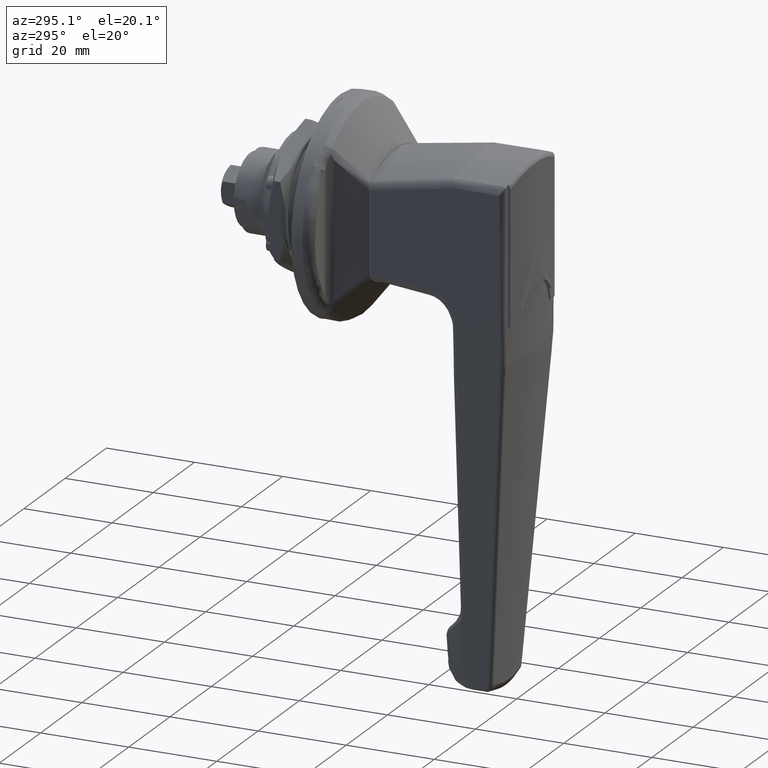
[diagram: clean part render]
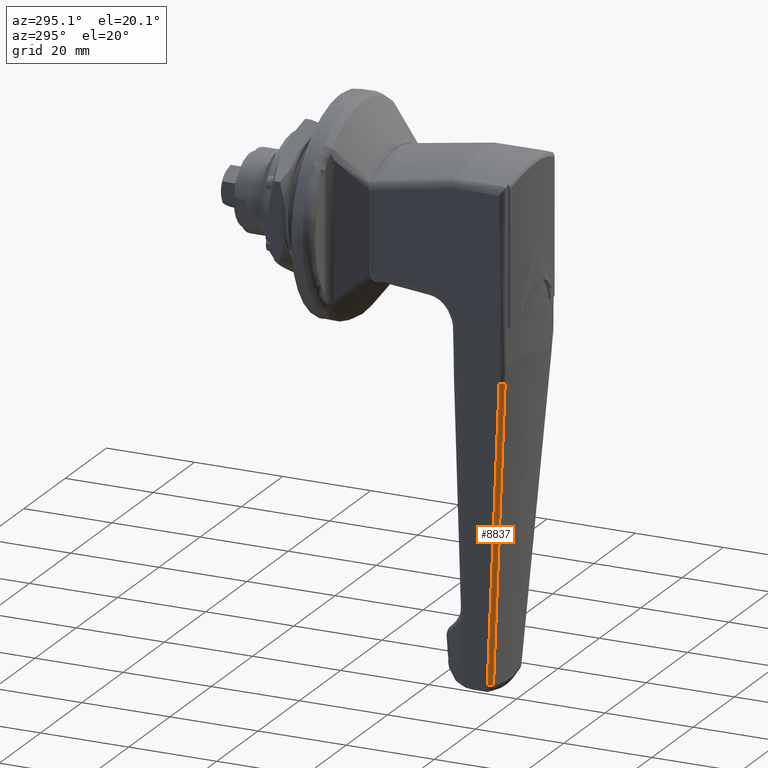
[diagram: same view with one face highlighted and labeled with its STEP entity id]
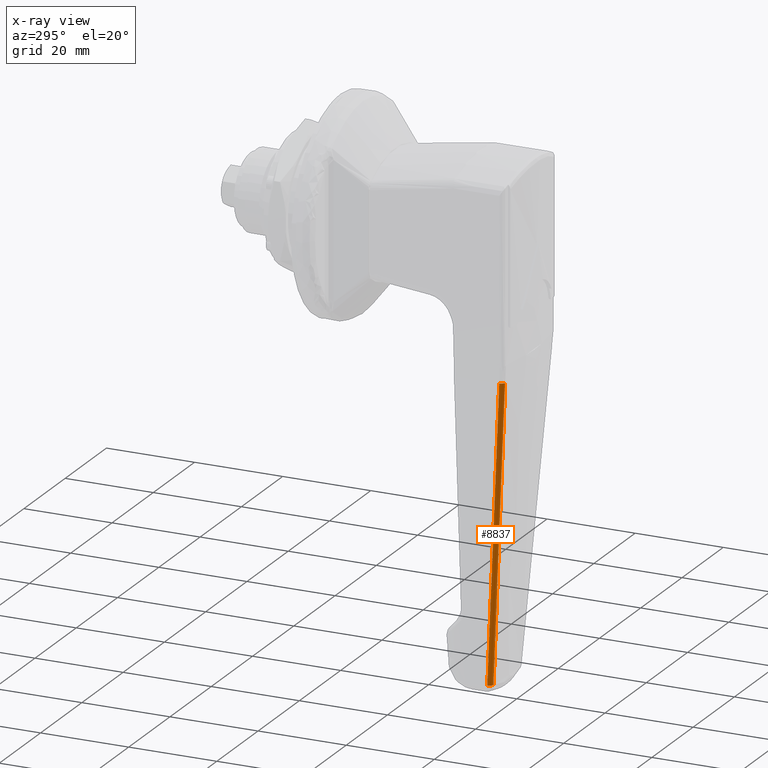
[diagram: x-ray of the same camera — body ghosted, the highlighted face saturated]
A machine part, auxiliary view. The second image highlights one B-rep face of the part: STEP entity #8837.
The next image is the same camera in x-ray: the body ghosted, the highlighted face saturated — about 0% of this face is hidden behind the body in this view.
In plain terms, the highlighted face is a freeform B-spline surface patch.
Its self-contained STEP definition (entity closure, byte-faithful):
#7257=CARTESIAN_POINT('',(-37.843350285108812,6.721442861657440,-97.221635429455205));
#7258=VERTEX_POINT('',#7257);
#7266=CARTESIAN_POINT('',(-36.852808266133650,7.607287943265200,-97.207654371133600));
#7267=VERTEX_POINT('',#7266);
#7268=CARTESIAN_POINT('',(-36.852808266133650,7.607287943265200,-97.207654371133600));
#7269=CARTESIAN_POINT('',(-37.739632021216991,7.603096634903744,-97.271754829369200));
#7270=CARTESIAN_POINT('',(-37.843350285108791,6.721442861657438,-97.221635429455219));
#7278=(BOUNDED_CURVE()B_SPLINE_CURVE(2,(#7268,#7269,#7270),.UNSPECIFIED.,.F.,.U.)CURVE()GEOMETRIC_REPRESENTATION_ITEM()QUASI_UNIFORM_CURVE()RATIONAL_B_SPLINE_CURVE((1.0,0.747313443282703,1.0))REPRESENTATION_ITEM(''));
#7279=EDGE_CURVE('',#7267,#7258,#7278,.T.);
#8536=CARTESIAN_POINT('',(-41.636799778328999,12.073825860416800,-28.897928022205551));
#8537=VERTEX_POINT('',#8536);
#8538=CARTESIAN_POINT('',(-42.615893900489901,11.263684811303120,-28.910993423007550));
#8539=VERTEX_POINT('',#8538);
#8540=CARTESIAN_POINT('',(-41.636799778328999,12.073825860416781,-28.897928022205569));
#8541=CARTESIAN_POINT('',(-42.457885937416890,12.070220139434870,-28.953072704314934));
#8542=CARTESIAN_POINT('',(-42.615893900489901,11.263684811303120,-28.910993423007561));
#8550=(BOUNDED_CURVE()B_SPLINE_CURVE(2,(#8540,#8541,#8542),.UNSPECIFIED.,.F.,.U.)CURVE()GEOMETRIC_REPRESENTATION_ITEM()QUASI_UNIFORM_CURVE()RATIONAL_B_SPLINE_CURVE((1.0,0.772152102210581,1.0))REPRESENTATION_ITEM(''));
#8551=EDGE_CURVE('',#8537,#8539,#8550,.T.);
#8759=CARTESIAN_POINT('',(-37.819241118201624,6.692038137102990,-97.564601542203334));
#8760=CARTESIAN_POINT('',(-37.827535246871129,6.699648737948387,-97.450155051248714));
#8761=CARTESIAN_POINT('',(-37.835829382543622,6.707259345219664,-97.335708463662982));
#8762=CARTESIAN_POINT('',(-39.503092870057884,8.237121903807259,-74.329981973721360));
#8763=CARTESIAN_POINT('',(-41.095644119572661,9.752802762297382,-51.537520208490342));
#8764=CARTESIAN_POINT('',(-42.624719288889445,11.264994489174267,-28.797525771601045));
#8765=CARTESIAN_POINT('',(-42.632327248383604,11.272518444592787,-28.684382245340686));
#8766=CARTESIAN_POINT('',(-42.639935214021982,11.280042406087654,-28.571238627705732));
#8767=CARTESIAN_POINT('',(-37.818855105125515,6.695320321203200,-97.564802958268004));
#8768=CARTESIAN_POINT('',(-37.827149197602758,6.702930965190286,-97.450351476783879));
#8769=CARTESIAN_POINT('',(-37.835443293585875,6.710541612394385,-97.335899946921060));
#8770=CARTESIAN_POINT('',(-39.502627799726064,8.240347045823944,-74.330159757821207));
#8771=CARTESIAN_POINT('',(-41.095105138564982,9.755968220924782,-51.537689789898920));
#8772=CARTESIAN_POINT('',(-42.624110610533201,11.268097474467968,-28.797692243049120));
#8773=CARTESIAN_POINT('',(-42.631717913357463,11.275620812580263,-28.684553310106196));
#8774=CARTESIAN_POINT('',(-42.639325219257060,11.283144153733931,-28.571414331425842));
#8775=CARTESIAN_POINT('',(-37.714764020344624,7.580383871146475,-97.619116187450288));
#8776=CARTESIAN_POINT('',(-37.723054292878885,7.587955649936431,-97.503315953199802));
#8777=CARTESIAN_POINT('',(-37.731343626449807,7.595526571140275,-97.387528834582398));
#8778=CARTESIAN_POINT('',(-39.378654484728301,9.100069801249806,-74.377551480542053));
#8779=CARTESIAN_POINT('',(-40.952998567017758,10.590566224416373,-51.582401258820411));
#8780=CARTESIAN_POINT('',(-42.465331115613161,12.077540479337191,-28.841117891706432));
#8781=CARTESIAN_POINT('',(-42.472775513515742,12.084860052029596,-28.729174812548699));
#8782=CARTESIAN_POINT('',(-42.480219131247360,12.092178857632678,-28.617243464996612));
#8783=CARTESIAN_POINT('',(-36.824574189366743,7.584853033446064,-97.550766324695033));
#8784=CARTESIAN_POINT('',(-36.832882379057757,7.592336547340434,-97.436315984020553));
#8785=CARTESIAN_POINT('',(-36.841190572260267,7.599820064397711,-97.321865594973886));
#8786=CARTESIAN_POINT('',(-38.511208731965276,9.104071239053962,-74.316354837691961));
#8787=CARTESIAN_POINT('',(-40.107479332383505,10.594372394580782,-51.524190973908716));
#8788=CARTESIAN_POINT('',(-41.641264446765355,12.081237402601710,-28.784578392612204));
#8789=CARTESIAN_POINT('',(-41.648895529838100,12.088635042784643,-28.671441375553929));
#8790=CARTESIAN_POINT('',(-41.656526615995389,12.096032685957793,-28.558304312764502));
#8791=CARTESIAN_POINT('',(-36.821273388981474,7.584869604981845,-97.550512885208846));
#8792=CARTESIAN_POINT('',(-36.829581456772353,7.592352792519197,-97.436067535728739));
#8793=CARTESIAN_POINT('',(-36.837889531577147,7.599835986374099,-97.321622089630182));
#8794=CARTESIAN_POINT('',(-38.507955006605435,9.104086248153514,-74.316125293575624));
#8795=CARTESIAN_POINT('',(-40.104272834676479,10.594386828877957,-51.523970220627795));
#8796=CARTESIAN_POINT('',(-41.638105779140929,12.081251572998685,-28.784361675334299));
#8797=CARTESIAN_POINT('',(-41.645737411013762,12.088649513180350,-28.671220070196629));
#8798=CARTESIAN_POINT('',(-41.653369049049161,12.096047459335860,-28.558078373696866));
#8806=(BOUNDED_SURFACE()B_SPLINE_SURFACE(3,2,((#8759,#8767,#8775,#8783,#8791),(#8760,#8768,#8776,#8784,#8792),(#8761,#8769,#8777,#8785,#8793),(#8762,#8770,#8778,#8786,#8794),(#8763,#8771,#8779,#8787,#8795),(#8764,#8772,#8780,#8788,#8796),(#8765,#8773,#8781,#8789,#8797),(#8766,#8774,#8782,#8790,#8798)),.UNSPECIFIED.,.F.,.F.,.U.)B_SPLINE_SURFACE_WITH_KNOTS((4,2,2,4),(3,1,1,3),(0.0,0.346739250180819,69.694590832178605,70.041330082387361),(0.0,0.007608744898191,1.529173803528812,1.536781633228009),.UNSPECIFIED.)GEOMETRIC_REPRESENTATION_ITEM()RATIONAL_B_SPLINE_SURFACE(((1.002528440707001,1.001264220353501,0.747186488437333,1.001264068289893,1.002528136579787),(1.002528017473030,1.001264008736515,0.747228806719125,1.001263856698362,1.002527713396724),(1.002527594239060,1.001263797119530,0.747271125000917,1.001263645106830,1.002527290213661),(1.002442524209072,1.001221262104536,0.755777099829785,1.001221115208055,1.002442230416110),(1.002359698239258,1.001179849119629,0.764058695763235,1.001179707204406,1.002359414408813),(1.002278349672554,1.001139174836277,0.772192569241938,1.001139037813460,1.002278075626919),(1.002277944953326,1.001138972476663,0.772233036273276,1.001138835478186,1.002277670956371),(1.002277540234097,1.001138770117049,0.772273503304615,1.001138633142912,1.002277266285823)))REPRESENTATION_ITEM('')SURFACE());
#8807=CARTESIAN_POINT('',(-36.852808266133643,7.607287943265207,-97.207654371133742));
#8808=CARTESIAN_POINT('',(-39.346519064385504,9.853537082323253,-62.854276688755867));
#8809=CARTESIAN_POINT('',(-41.636799778329092,12.073825860416809,-28.897928022205640));
#8817=(BOUNDED_CURVE()B_SPLINE_CURVE(2,(#8807,#8808,#8809),.UNSPECIFIED.,.F.,.U.)CURVE()GEOMETRIC_REPRESENTATION_ITEM()QUASI_UNIFORM_CURVE()RATIONAL_B_SPLINE_CURVE((1.0,0.999266857087295,1.0))REPRESENTATION_ITEM(''));
#8818=EDGE_CURVE('',#7267,#8537,#8817,.T.);
#8819=ORIENTED_EDGE('',*,*,#8818,.F.);
#8820=ORIENTED_EDGE('',*,*,#7279,.T.);
#8821=CARTESIAN_POINT('',(-42.615893900489901,11.263684811303120,-28.910993423007550));
#8822=CARTESIAN_POINT('',(-40.332782749299106,9.005764020021545,-62.867915545464641));
#8823=CARTESIAN_POINT('',(-37.843350285108798,6.721442861657466,-97.221635429455134));
#8831=(BOUNDED_CURVE()B_SPLINE_CURVE(2,(#8821,#8822,#8823),.UNSPECIFIED.,.F.,.U.)CURVE()GEOMETRIC_REPRESENTATION_ITEM()QUASI_UNIFORM_CURVE()RATIONAL_B_SPLINE_CURVE((1.0,0.999266857087292,1.0))REPRESENTATION_ITEM(''));
#8832=EDGE_CURVE('',#8539,#7258,#8831,.T.);
#8833=ORIENTED_EDGE('',*,*,#8832,.F.);
#8834=ORIENTED_EDGE('',*,*,#8551,.F.);
#8835=EDGE_LOOP('',(#8819,#8820,#8833,#8834));
#8836=FACE_OUTER_BOUND('',#8835,.T.);
#8837=ADVANCED_FACE('',(#8836),#8806,.T.);